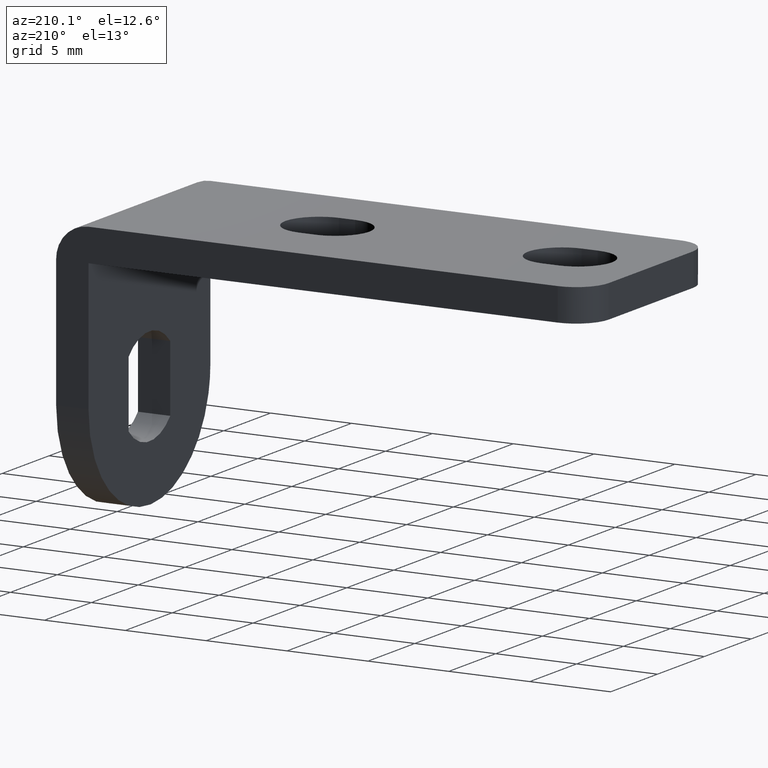
[diagram: clean part render]
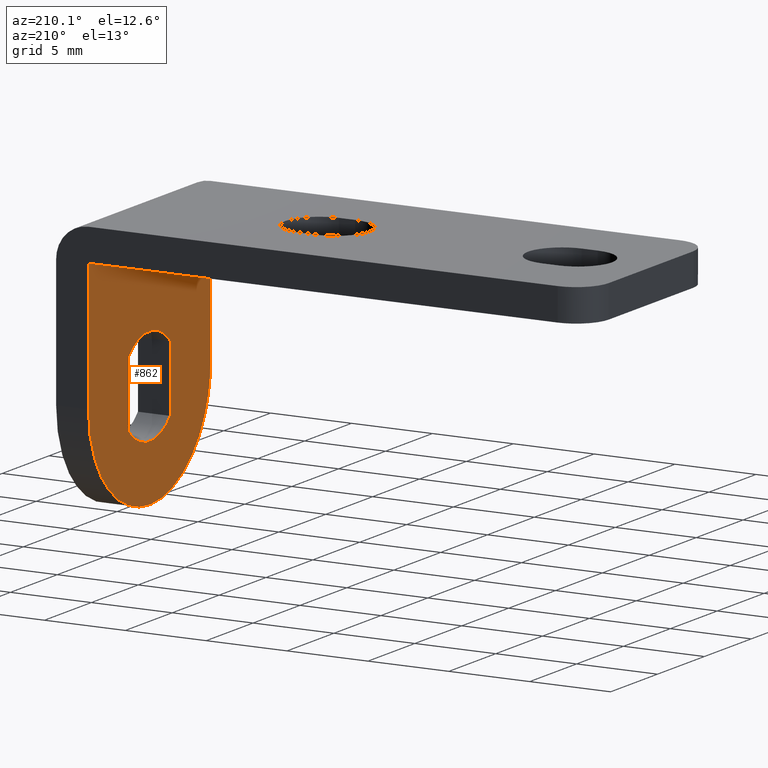
[diagram: same view with one face highlighted and labeled with its STEP entity id]
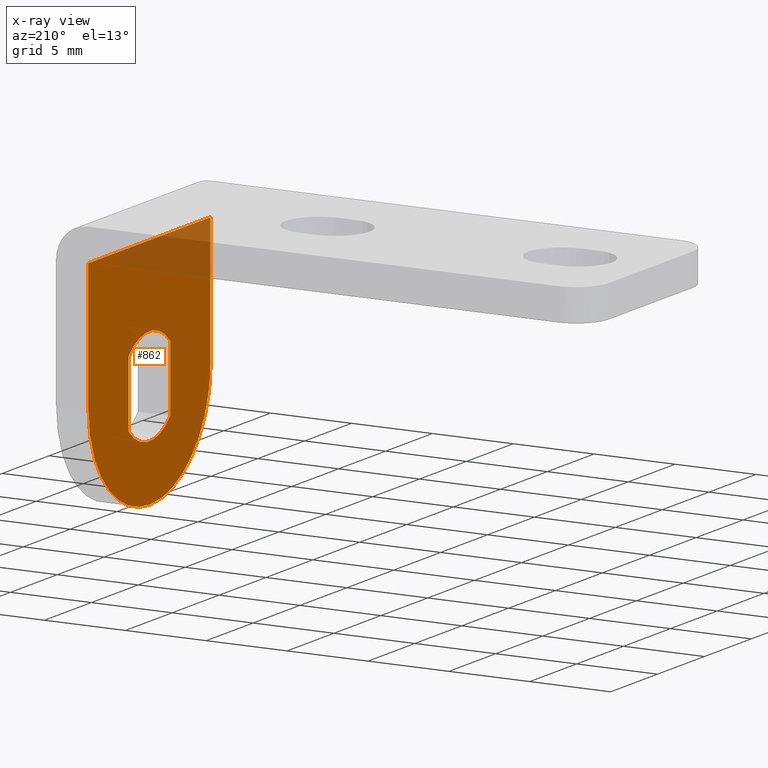
[diagram: x-ray of the same camera — body ghosted, the highlighted face saturated]
A machine part, auxiliary view. The second image highlights one B-rep face of the part: STEP entity #862.
The next image is the same camera in x-ray: the body ghosted, the highlighted face saturated — about 14% of this face is hidden behind the body in this view.
In plain terms, the highlighted face is a freeform B-spline surface patch.
Its self-contained STEP definition (entity closure, byte-faithful):
#213=CARTESIAN_POINT('',(-2.0,-2.225000000000000,-2.049390153191900));
#214=VERTEX_POINT('',#213);
#215=CARTESIAN_POINT('',(-2.0,-2.225000000000000,2.049390153191810));
#216=VERTEX_POINT('',#215);
#217=CARTESIAN_POINT('',(-2.0,-2.225000000000000,-2.049390153191900));
#218=CARTESIAN_POINT('',(-2.0,-2.225000000000000,2.049390153191810));
#219=QUASI_UNIFORM_CURVE('',1,(#217,#218),.UNSPECIFIED.,.F.,.U.);
#220=EDGE_CURVE('',#214,#216,#219,.T.);
#258=CARTESIAN_POINT('',(-2.0,2.225000000000000,-2.049390153191895));
#259=VERTEX_POINT('',#258);
#260=CARTESIAN_POINT('',(-2.0,2.225000000000000,-2.049390153191895));
#261=CARTESIAN_POINT('',(-2.0,2.101505619495727,-2.183479612575628));
#262=CARTESIAN_POINT('',(-2.0,1.801131388566470,-2.455601944057032));
#263=CARTESIAN_POINT('',(-2.0,1.305557498763463,-2.749922535725177));
#264=CARTESIAN_POINT('',(-1.999999999999999,0.825473383847988,-2.920894479872005));
#265=CARTESIAN_POINT('',(-2.000000000000007,0.390864704031906,-3.009061683374335));
#266=CARTESIAN_POINT('',(-1.999999999999987,-0.117420446036299,-3.041971172032383));
#267=CARTESIAN_POINT('',(-2.000000000000007,-0.676414282255761,-2.969390914024591));
#268=CARTESIAN_POINT('',(-2.000000000000003,-1.195729694786962,-2.791864609872553));
#269=CARTESIAN_POINT('',(-1.999999999999996,-1.715635769934116,-2.518412250746568));
#270=CARTESIAN_POINT('',(-2.000000000000001,-2.039810292822370,-2.250592039802251));
#271=CARTESIAN_POINT('',(-2.0,-2.225000000000000,-2.049390153191900));
#272=B_SPLINE_CURVE_WITH_KNOTS('',3,(#260,#261,#262,#263,#264,#265,#266,#267,#268,#269,#270,#271),.UNSPECIFIED.,.F.,.U.,(4,1,1,1,1,1,1,1,1,4),(8.069619E-009,0.546886146901112,1.210964638110033,1.718794840483118,2.070368489043807,2.539117460991305,3.242255531745626,3.750085249541511,4.179782768870926,5.000113255541421),.UNSPECIFIED.);
#273=EDGE_CURVE('',#259,#214,#272,.T.);
#305=CARTESIAN_POINT('',(-2.0,2.225000000000000,2.049390153191810));
#306=VERTEX_POINT('',#305);
#307=CARTESIAN_POINT('',(-2.0,2.225000000000000,2.049390153191810));
#308=CARTESIAN_POINT('',(-2.0,2.225000000000000,-2.049390153191895));
#309=QUASI_UNIFORM_CURVE('',1,(#307,#308),.UNSPECIFIED.,.F.,.U.);
#310=EDGE_CURVE('',#306,#259,#309,.T.);
#342=CARTESIAN_POINT('',(-2.0,-2.225000000000000,2.049390153191810));
#343=CARTESIAN_POINT('',(-1.999999999999998,-2.031006195260670,2.260190321691498));
#344=CARTESIAN_POINT('',(-2.000000000000007,-1.725189268082799,2.509500036538843));
#345=CARTESIAN_POINT('',(-1.999999999999994,-1.242172448946228,2.767541170521441));
#346=CARTESIAN_POINT('',(-2.000000000000012,-0.863487723868469,2.910773057280674));
#347=CARTESIAN_POINT('',(-1.999999999999989,-0.391415096193735,3.012908597625646));
#348=CARTESIAN_POINT('',(-1.999999999999996,0.091684946193217,3.037890837009070));
#349=CARTESIAN_POINT('',(-2.000000000000005,0.649490684755462,2.972781117727226));
#350=CARTESIAN_POINT('',(-1.999999999999998,1.149529323285999,2.816209647081225));
#351=CARTESIAN_POINT('',(-2.000000000000001,1.715630193629047,2.518396352325647));
#352=CARTESIAN_POINT('',(-1.999999999999999,2.039812081739565,2.250597189945147));
#353=CARTESIAN_POINT('',(-2.0,2.225000000000000,2.049390153191810));
#354=B_SPLINE_CURVE_WITH_KNOTS('',3,(#342,#343,#344,#345,#346,#347,#348,#349,#350,#351,#352,#353),.UNSPECIFIED.,.F.,.U.,(4,1,1,1,1,1,1,1,1,4),(8.069359E-009,0.859390450907211,1.171900766265275,1.640667301761298,2.070368489043887,2.617239591922656,3.086007354720771,3.750085249541642,4.179782768871053,5.000113255541534),.UNSPECIFIED.);
#355=EDGE_CURVE('',#216,#306,#354,.T.);
#799=CARTESIAN_POINT('',(-2.0,7.149349974803477,8.724274971896184));
#800=CARTESIAN_POINT('',(-2.0,-7.149350323490650,8.724274971896184));
#801=CARTESIAN_POINT('',(-2.0,7.149349974803477,-7.224275360816481));
#802=CARTESIAN_POINT('',(-2.0,-7.149350323490650,-7.224275360816481));
#803=B_SPLINE_SURFACE_WITH_KNOTS('',1,1,((#799,#801),(#800,#802)),.UNSPECIFIED.,.F.,.F.,.U.,(2,2),(2,2),(0.0,14.298700298294129),(0.0,15.948550332712671),.UNSPECIFIED.);
#804=CARTESIAN_POINT('',(-2.0,6.500000000000000,-1.193991E-015));
#805=VERTEX_POINT('',#804);
#806=CARTESIAN_POINT('',(-2.0,-6.500000000000000,1.193991E-015));
#807=VERTEX_POINT('',#806);
#808=CARTESIAN_POINT('',(-2.0,6.500000000000000,-1.193991E-015));
#809=CARTESIAN_POINT('',(-1.999999999999997,6.500025426505443,-0.345656446081939));
#810=CARTESIAN_POINT('',(-2.000000000000002,6.448974651867337,-0.983778392165899));
#811=CARTESIAN_POINT('',(-2.000000000000003,6.251026567345239,-1.840647117348953));
#812=CARTESIAN_POINT('',(-2.000000000000008,5.936241192412015,-2.703762827278696));
#813=CARTESIAN_POINT('',(-1.999999999999978,5.524925572956372,-3.467627936959102));
#814=CARTESIAN_POINT('',(-2.000000000000014,4.969690109730950,-4.216236978139025));
#815=CARTESIAN_POINT('',(-2.000000000000004,4.315125921380862,-4.899589401327991));
#816=CARTESIAN_POINT('',(-1.999999999999970,3.557235209807541,-5.468917830801994));
#817=CARTESIAN_POINT('',(-2.000000000000051,2.702830228493413,-5.932341434402829));
#818=CARTESIAN_POINT('',(-1.999999999999945,1.843445933456443,-6.260829179109481));
#819=CARTESIAN_POINT('',(-2.000000000000039,0.786592613153222,-6.484583147521252));
#820=CARTESIAN_POINT('',(-2.000000000000085,-0.200689680580520,-6.520947790900753));
#821=CARTESIAN_POINT('',(-1.999999999999906,-1.127039246762629,-6.418178689722023));
#822=CARTESIAN_POINT('',(-2.000000000000092,-1.969718634741845,-6.218072168985705));
#823=CARTESIAN_POINT('',(-1.999999999999881,-2.961392022278480,-5.825079316354625));
#824=CARTESIAN_POINT('',(-2.000000000000171,-3.892485264195813,-5.247398064412497));
#825=CARTESIAN_POINT('',(-1.999999999999970,-4.647295867504491,-4.571599508465138));
#826=CARTESIAN_POINT('',(-1.999999999999990,-5.176004431551932,-3.954853493041523));
#827=CARTESIAN_POINT('',(-2.000000000000012,-5.646312273409182,-3.260263654882156));
#828=CARTESIAN_POINT('',(-1.999999999999959,-6.102465573079885,-2.340184538032268));
#829=CARTESIAN_POINT('',(-2.000000000000109,-6.426472580652728,-1.209789316548541));
#830=CARTESIAN_POINT('',(-1.999999999999867,-6.500032757692410,-0.385540029992129));
#831=CARTESIAN_POINT('',(-2.0,-6.500000000000000,1.193991E-015));
#832=B_SPLINE_CURVE_WITH_KNOTS('',3,(#808,#809,#810,#811,#812,#813,#814,#815,#816,#817,#818,#819,#820,#821,#822,#823,#824,#825,#826,#827,#828,#829,#830,#831),.UNSPECIFIED.,.F.,.U.,(4,1,1,1,1,1,1,1,1,1,1,1,1,1,1,1,1,1,1,1,1,4),(0.000000055785154,1.036965685181901,1.914394275590116,2.632313006088687,3.788931591196974,4.506843486594113,5.424167088487160,6.620673878396687,7.338584896999844,8.335682672362676,9.372656980965527,10.569121763500840,11.287035985506140,12.164482380999440,13.161563963835450,14.477728813842839,15.434939765199051,16.192728185973579,16.910640513222710,17.947618174241001,19.263765361580720,20.420384281945129),.UNSPECIFIED.);
#833=EDGE_CURVE('',#805,#807,#832,.T.);
#834=ORIENTED_EDGE('',*,*,#833,.T.);
#835=CARTESIAN_POINT('',(-2.0,-6.500000000000000,8.0));
#836=VERTEX_POINT('',#835);
#837=CARTESIAN_POINT('',(-2.0,-6.500000000000000,1.193991E-015));
#838=CARTESIAN_POINT('',(-2.0,-6.500000000000000,8.0));
#839=QUASI_UNIFORM_CURVE('',1,(#837,#838),.UNSPECIFIED.,.F.,.U.);
#840=EDGE_CURVE('',#807,#836,#839,.T.);
#841=ORIENTED_EDGE('',*,*,#840,.T.);
#842=CARTESIAN_POINT('',(-2.0,6.500000000000000,8.0));
#843=VERTEX_POINT('',#842);
#844=CARTESIAN_POINT('',(-2.0,-6.500000000000000,8.0));
#845=CARTESIAN_POINT('',(-2.0,6.500000000000000,8.0));
#846=QUASI_UNIFORM_CURVE('',1,(#844,#845),.UNSPECIFIED.,.F.,.U.);
#847=EDGE_CURVE('',#836,#843,#846,.T.);
#848=ORIENTED_EDGE('',*,*,#847,.T.);
#849=CARTESIAN_POINT('',(-2.0,6.500000000000000,8.0));
#850=CARTESIAN_POINT('',(-2.0,6.500000000000000,-1.193991E-015));
#851=QUASI_UNIFORM_CURVE('',1,(#849,#850),.UNSPECIFIED.,.F.,.U.);
#852=EDGE_CURVE('',#843,#805,#851,.T.);
#853=ORIENTED_EDGE('',*,*,#852,.T.);
#854=EDGE_LOOP('',(#834,#841,#848,#853));
#855=FACE_OUTER_BOUND('',#854,.T.);
#856=ORIENTED_EDGE('',*,*,#355,.F.);
#857=ORIENTED_EDGE('',*,*,#220,.F.);
#858=ORIENTED_EDGE('',*,*,#273,.F.);
#859=ORIENTED_EDGE('',*,*,#310,.F.);
#860=EDGE_LOOP('',(#856,#857,#858,#859));
#861=FACE_BOUND('',#860,.T.);
#862=ADVANCED_FACE('',(#855,#861),#803,.F.);